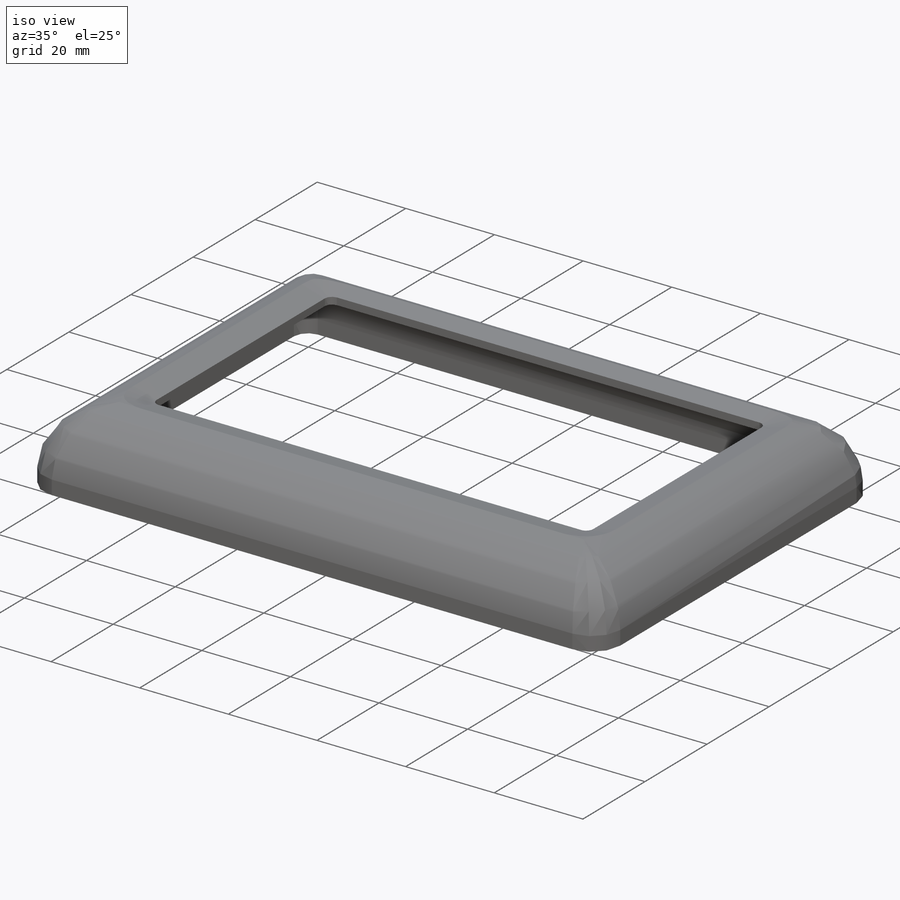
[diagram: iso view]
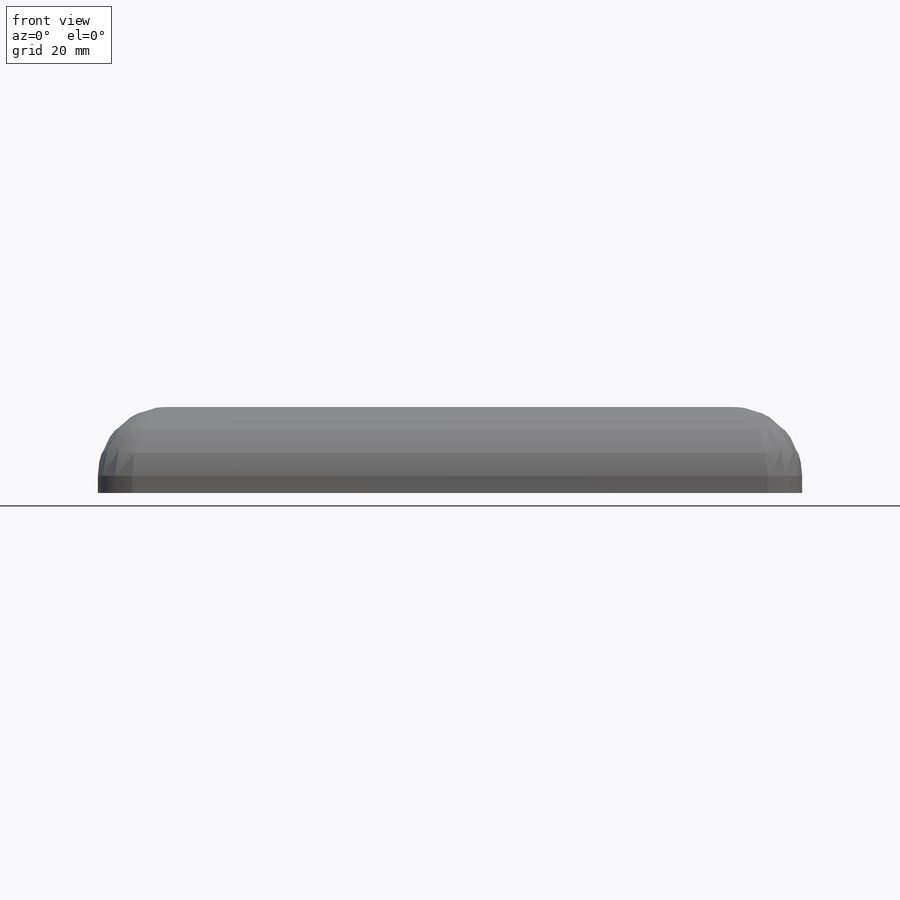
[diagram: front view]
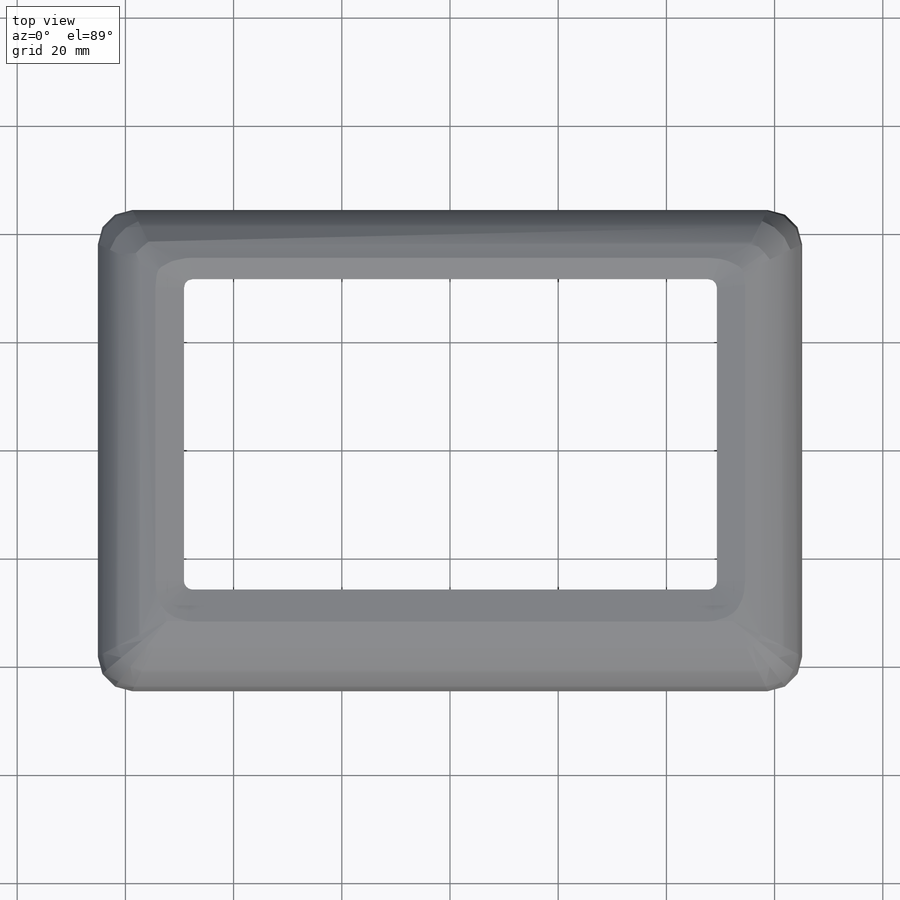
[diagram: top view]
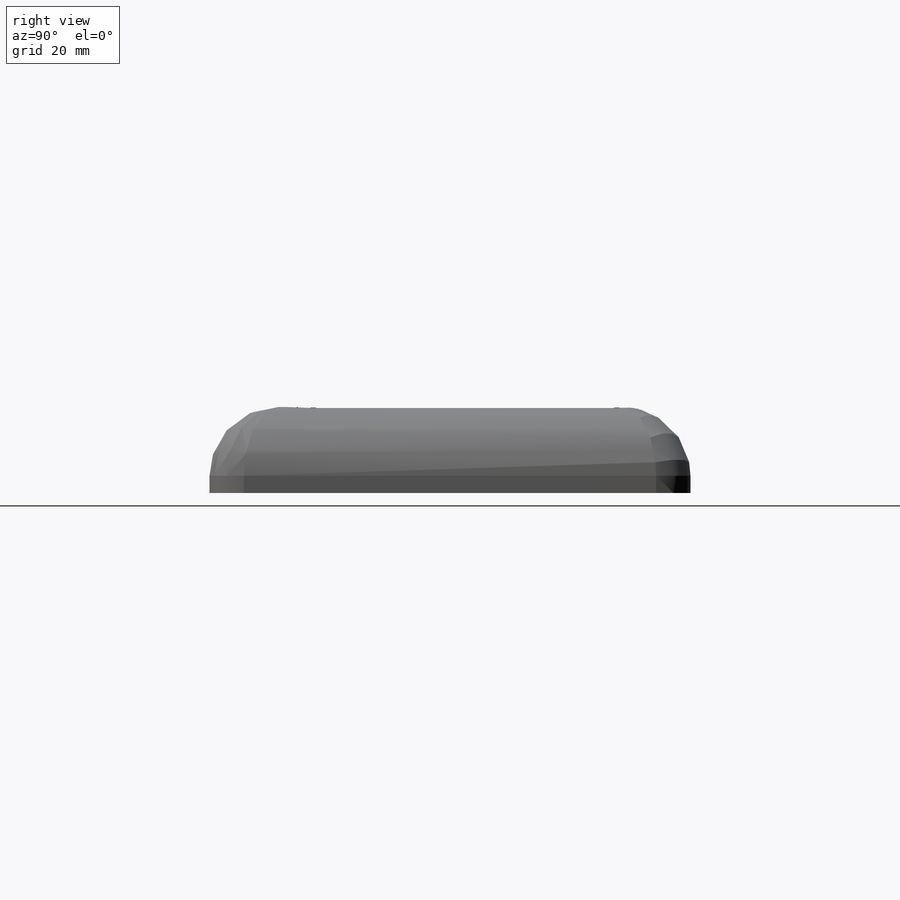
[diagram: right view]
SOLIDWORKS PART (.sldprt)
format: sldprt  version: not decoded by parser v0  size: 301,568 bytes
history: native  units: mm
features: fillet x3, sketch x2, material x1, extrude x1, shell x1, cut_extrude x1, chamfer x1 + 2 further entries (+15 scaffold rows collapsed)
feature tree (27):
  scaffold x15  (default folders/planes/origin — collapsed)
  material  "Material <not specified>"
  "Axis Y"
  "Axis Z"
  sketch  "Sketch1"  dims[D1=123.825mm D2=82.55mm]
  extrude  "Boss-Extrude1"  Depth=12.7mm
  fillet  "Fillet1"  Radius=3.175mm
  fillet  "Fillet2"  Radius=9.525mm
  shell  "Shell1"  Thickness=3.175mm
  sketch  "Sketch2"  dims[D1=57.4mm D2=98.5mm D3=31.5017mm D4=49.1662mm]
  cut_extrude  "Cut-Extrude1"  [1 undecoded]
  fillet  "Fillet3"  Radius=1.5875mm
  chamfer  "Chamfer1"  Distance=1.5875mm Angle=75deg
decode coverage: 8 of 9 modeling features carry decoded parameters; 2 rows unclassified (native names shown)
note: 1 parameter value undecoded
note: suppression state not decoded; provenance and decode notes live in map.json
